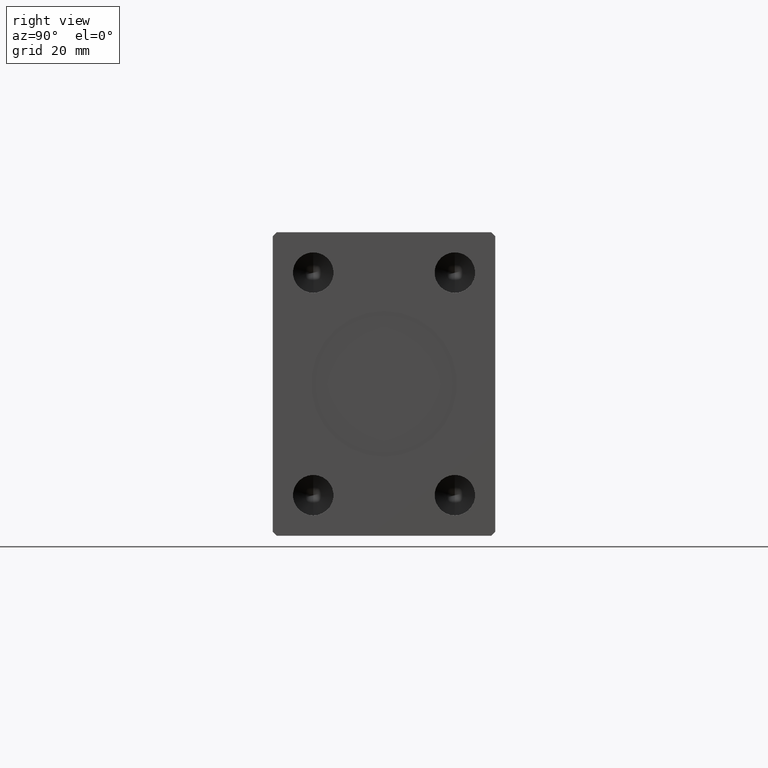
[diagram: clean part render]
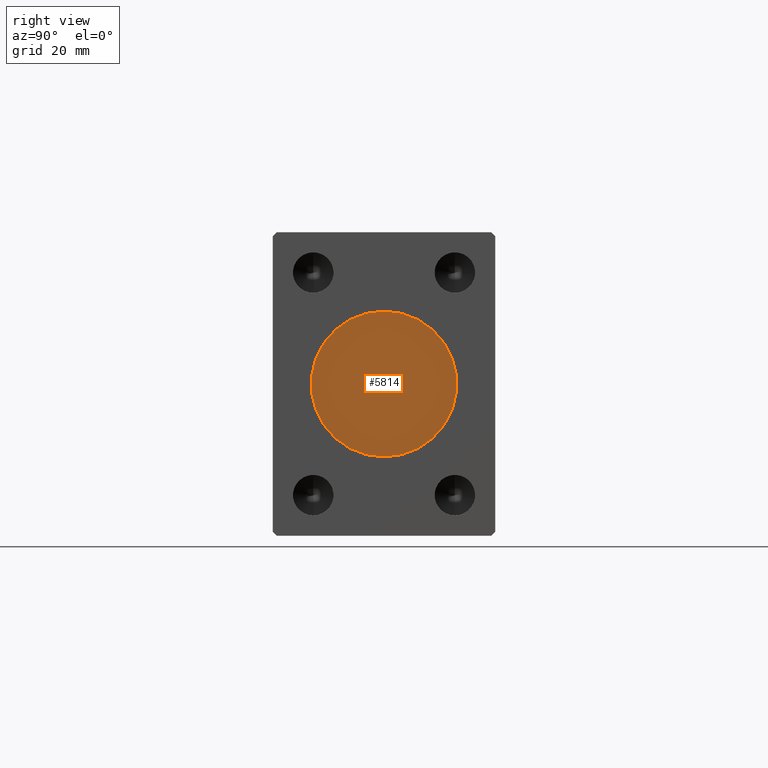
[diagram: same view with one face highlighted and labeled with its STEP entity id]
A machine part, right view. The second image highlights one B-rep face of the part: STEP entity #5814.
In plain terms, the highlighted planar face has unit normal (1, 0, 0).
Its self-contained STEP definition (entity closure, byte-faithful):
#4874 = CARTESIAN_POINT ( 'NONE',  ( 144.7999999999999829, 0.000000000000000000, 0.000000000000000000 ) ) ;
#5585 = VERTEX_POINT ( 'NONE', #21643 ) ;
#5814 = ADVANCED_FACE ( 'NONE', ( #18467 ), #12231, .T. ) ;
#6833 = EDGE_CURVE ( 'NONE', #36701, #5585, #18516, .T. ) ;
#11580 = DIRECTION ( 'NONE',  ( 1.000000000000000000, 0.000000000000000000, 0.000000000000000000 ) ) ;
#12231 = PLANE ( 'NONE',  #17785 ) ;
#13223 = AXIS2_PLACEMENT_3D ( 'NONE', #24281, #34103, #33888 ) ;
#17785 = AXIS2_PLACEMENT_3D ( 'NONE', #4874, #11580, #35855 ) ;
#18467 = FACE_OUTER_BOUND ( 'NONE', #35426, .T. ) ;
#18516 = CIRCLE ( 'NONE', #29940, 18.00000000000000000 ) ;
#18730 = EDGE_CURVE ( 'NONE', #5585, #36701, #31690, .T. ) ;
#21643 = CARTESIAN_POINT ( 'NONE',  ( 144.7999999999999829, 2.204364238465235428E-15, 18.00000000000000000 ) ) ;
#22020 = CARTESIAN_POINT ( 'NONE',  ( 144.7999999999999829, 0.000000000000000000, -18.00000000000000000 ) ) ;
#24281 = CARTESIAN_POINT ( 'NONE',  ( 144.7999999999999829, 0.000000000000000000, 0.000000000000000000 ) ) ;
#29940 = AXIS2_PLACEMENT_3D ( 'NONE', #33851, #30069, #33409 ) ;
#30069 = DIRECTION ( 'NONE',  ( 1.000000000000000000, 0.000000000000000000, 0.000000000000000000 ) ) ;
#31690 = CIRCLE ( 'NONE', #13223, 18.00000000000000000 ) ;
#33409 = DIRECTION ( 'NONE',  ( 0.000000000000000000, 0.000000000000000000, -1.000000000000000000 ) ) ;
#33851 = CARTESIAN_POINT ( 'NONE',  ( 144.7999999999999829, 0.000000000000000000, 0.000000000000000000 ) ) ;
#33888 = DIRECTION ( 'NONE',  ( 0.000000000000000000, 0.000000000000000000, -1.000000000000000000 ) ) ;
#33896 = ORIENTED_EDGE ( 'NONE', *, *, #6833, .T. ) ;
#34103 = DIRECTION ( 'NONE',  ( 1.000000000000000000, 0.000000000000000000, 0.000000000000000000 ) ) ;
#35426 = EDGE_LOOP ( 'NONE', ( #33896, #37155 ) ) ;
#35855 = DIRECTION ( 'NONE',  ( 0.000000000000000000, 0.000000000000000000, -1.000000000000000000 ) ) ;
#36701 = VERTEX_POINT ( 'NONE', #22020 ) ;
#37155 = ORIENTED_EDGE ( 'NONE', *, *, #18730, .T. ) ;